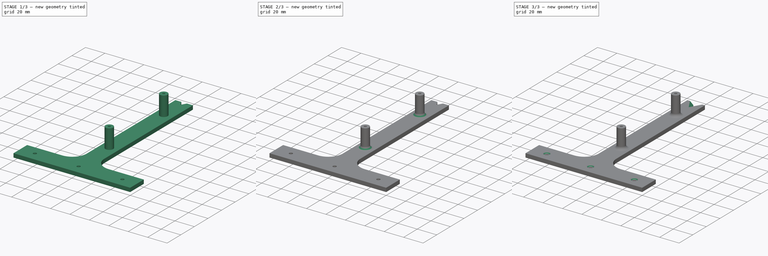
[diagram: build sequence overview — one tinted view per stage of 3, left to right]
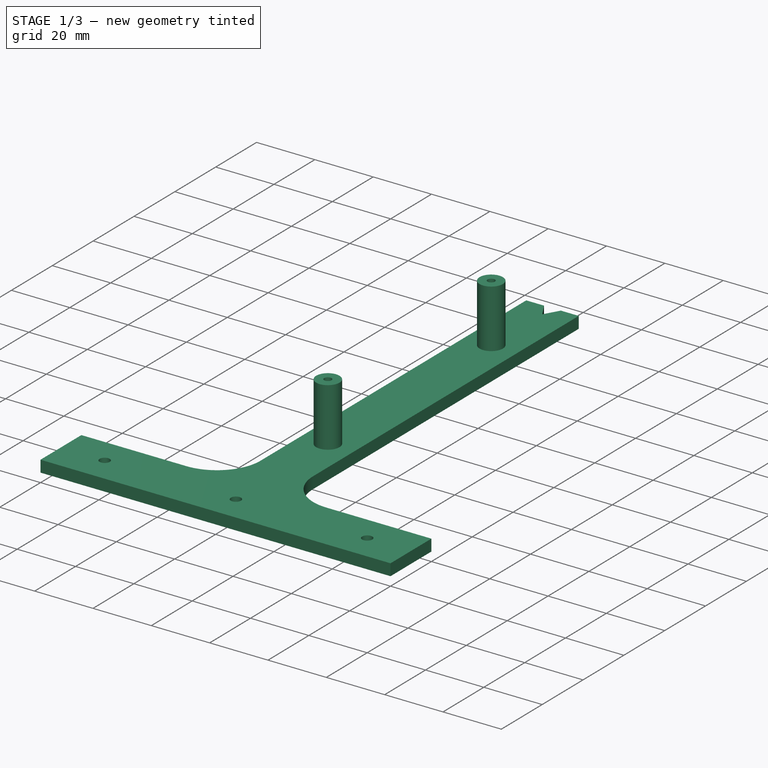
[diagram: stage 1 of 3 — iso view after this stage's code; geometry added in this stage tinted green]
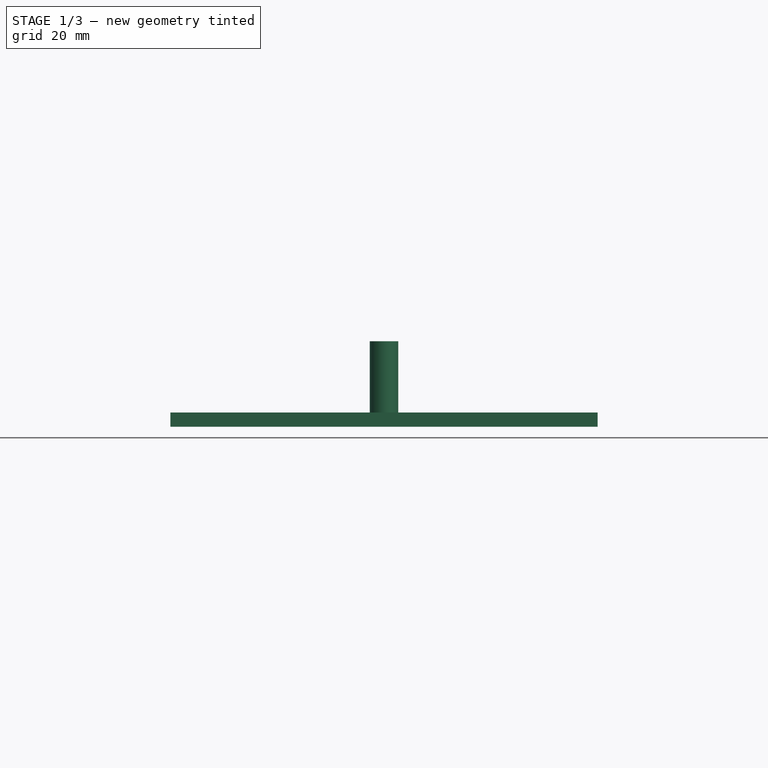
[diagram: stage 1 of 3 — front view after this stage's code; geometry added in this stage tinted green]
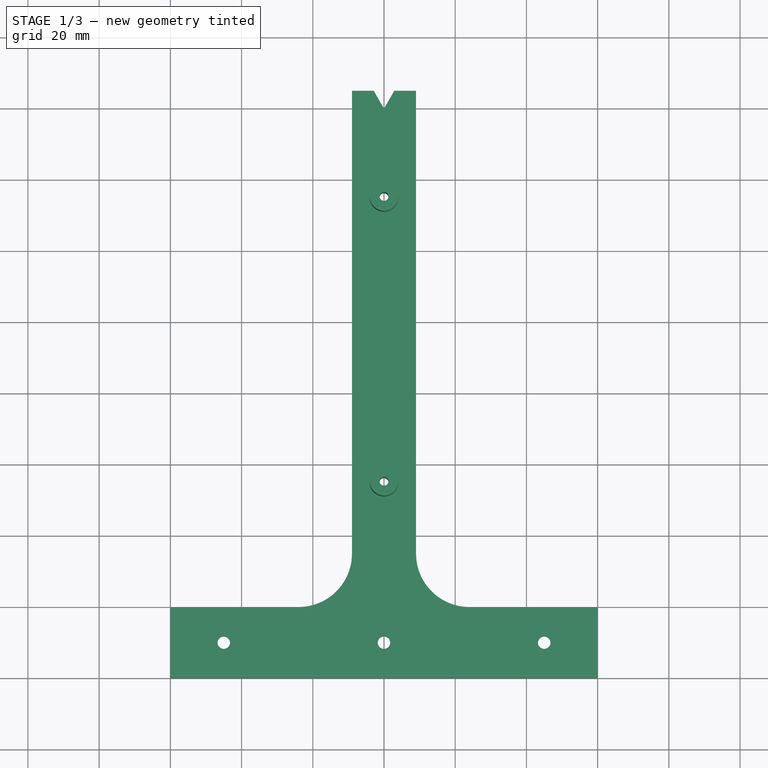
[diagram: stage 1 of 3 — top view after this stage's code; geometry added in this stage tinted green]
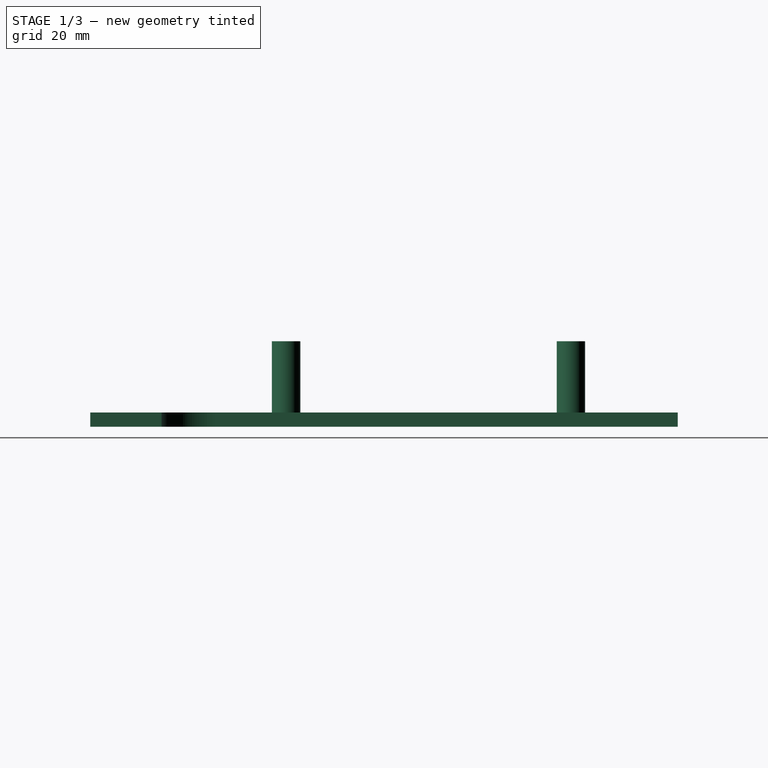
[diagram: stage 1 of 3 — right view after this stage's code; geometry added in this stage tinted green]
FCSTD DOCUMENT  (FreeCAD 0.18R16131 (Git))
Label: Bohrschablone
License: All rights reserved
LicenseURL: http://en.wikipedia.org/wiki/All_rights_reserved
objects: Sketcher::SketchObject×2, PartDesign::Pad×2, PartDesign::Fillet×2, PartDesign::Chamfer×2, PartDesign::Body×1
note: 11 computed .brp shape members not serialized (recipe doc carries the construction recipe); baked Part::Feature solids carry a one-line shape summary decoded from their .brp

FEATURE [Sketcher::SketchObject] Sketch
  MapMode = 5
  Support = -> [XY_Plane]
  sketch-geometry (18):
    g0: LineSegment StartX=-24 StartY=0 StartZ=0 EndX=-60 EndY=0 EndZ=0
    g1: LineSegment StartX=-60 StartY=0 StartZ=0 EndX=-60 EndY=-20 EndZ=0
    g2: LineSegment StartX=-60 StartY=-20 StartZ=0 EndX=60 EndY=-20 EndZ=0
    g3: LineSegment StartX=60 StartY=-20 StartZ=0 EndX=60 EndY=0 EndZ=0
    g4: LineSegment StartX=60 StartY=0 StartZ=0 EndX=24 EndY=0 EndZ=0
    g5: LineSegment StartX=-9 StartY=15 StartZ=0 EndX=-9 EndY=145 EndZ=0
    g6: LineSegment StartX=-9 StartY=145 StartZ=0 EndX=-2.88675 EndY=145 EndZ=0
    g7: LineSegment StartX=-2.88675 StartY=145 StartZ=0 EndX=0 EndY=140 EndZ=0
    g8: LineSegment StartX=0 StartY=140 StartZ=0 EndX=2.88675 EndY=145 EndZ=0
    g9: LineSegment StartX=2.88675 StartY=145 StartZ=0 EndX=9 EndY=145 EndZ=0
    g10: LineSegment StartX=9 StartY=145 StartZ=0 EndX=9 EndY=15 EndZ=0
    g11: ArcOfCircle CenterX=-24 CenterY=15 CenterZ=0 NormalX=0 NormalY=0 NormalZ=1 AngleXU=0 Radius=15 StartAngle=4.71239 EndAngle=6.28319
    g12: ArcOfCircle CenterX=24 CenterY=15 CenterZ=0 NormalX=0 NormalY=0 NormalZ=1 AngleXU=0 Radius=15 StartAngle=3.14159 EndAngle=4.71239
    g13: Circle CenterX=-45 CenterY=-10 CenterZ=0 NormalX=0 NormalY=0 NormalZ=1 AngleXU=0 Radius=1.75
    g14: Circle CenterX=45 CenterY=-10 CenterZ=0 NormalX=0 NormalY=0 NormalZ=1 AngleXU=0 Radius=1.75
    g15: Circle CenterX=0 CenterY=-10 CenterZ=0 NormalX=0 NormalY=0 NormalZ=1 AngleXU=0 Radius=1.75
    g16: Circle CenterX=0 CenterY=35 CenterZ=0 NormalX=0 NormalY=0 NormalZ=1 AngleXU=0 Radius=1.25
    g17: Circle CenterX=0 CenterY=115 CenterZ=0 NormalX=0 NormalY=0 NormalZ=1 AngleXU=0 Radius=1.25
  constraints (48):
    c: PointOnObject(g0,g-1)
    c: Horizontal(g0)
    c: Coincident(g0,g1)
    c: Vertical(g1)
    c: Coincident(g1,g2)
    c: Coincident(g2,g3)
    c: PointOnObject(g3,g-1)
    c: Vertical(g3)
    c: Coincident(g3,g4)
    c: PointOnObject(g4,g-1)
    c: Vertical(g5)
    c: Coincident(g5,g6)
    c: Horizontal(g6)
    c: Coincident(g6,g7)
    c: PointOnObject(g7,g-2)
    c: Coincident(g7,g8)
    c: Coincident(g8,g9)
    c: Coincident(g9,g10)
    c: Vertical(g10)
    c: DistanceY(g4,g9) = 145
    c: DistanceY(g7,g6) = 5
    c: Symmetric(g6,g8,g-2)
    c: Symmetric(g5,g9,g-2)
    c: DistanceX(g-1,g9) = 9
    c: Angle(g8,g7) = 1.0472
    c: DistanceY(g1,g0) = 20
    c: Tangent(g11,g0) = 1.5708
    c: Tangent(g12,g4) = 1.5708
    c: Tangent(g11,g5) = -1.5708
    c: Tangent(g10,g12) = -1.5708
    c: Radius(g11) = 15
    c: Radius(g12) = 15
    c: Symmetric(g1,g2,g-2)
    c: DistanceX(g1,g2) = 120
    c: PointOnObject(g15,g-2)
    c: Radius(g13) = 1.75
    c: Equal(g13,g15)
    c: Equal(g13,g14)
    c: Horizontal(g14,g15)
    c: Symmetric(g13,g14,g-2)
    c: DistanceY(g14,g3) = 10
    c: DistanceX(g14,g3) = 15
    c: PointOnObject(g16,g-2)
    c: PointOnObject(g17,g-2)
    c: Radius(g17) = 1.25
    c: Radius(g16) = 1.25
    c: DistanceY(g4,g16) = 35
    c: DistanceY(g17,g6) = 30
FEATURE [PartDesign::Pad] Pad
  Length = 4
  Length2 = 100
  Profile = -> Sketch
  Type = 0
FEATURE [Sketcher::SketchObject] Sketch001
  ExternalGeometry = -> [Pad]
  MapMode = 5
  Placement = pos=(0,0,4) rot=(0,0,1;0rad)
  Support = -> [Pad]
  sketch-geometry (4):
    g0: Circle CenterX=0 CenterY=115 CenterZ=0 NormalX=0 NormalY=0 NormalZ=1 AngleXU=0 Radius=4
    g1: Circle CenterX=0 CenterY=115 CenterZ=0 NormalX=0 NormalY=0 NormalZ=1 AngleXU=0 Radius=1.25
    g2: Circle CenterX=0 CenterY=35 CenterZ=0 NormalX=0 NormalY=0 NormalZ=1 AngleXU=0 Radius=4
    g3: Circle CenterX=0 CenterY=35 CenterZ=0 NormalX=0 NormalY=0 NormalZ=1 AngleXU=0 Radius=1.25
  constraints (7):
    c: Coincident(g0,g-3)
    c: Radius(g0) = 4
    c: Coincident(g1,g0)
    c: Radius(g1) = 1.25
    c: Equal(g0,g2) = 4
    c: Coincident(g3,g2)
    c: Equal(g1,g3) = 1.25
FEATURE [PartDesign::Pad] Pad001
  BaseFeature = -> Pad
  Length = 20
  Length2 = 100
  Profile = -> Sketch001
  Type = 0
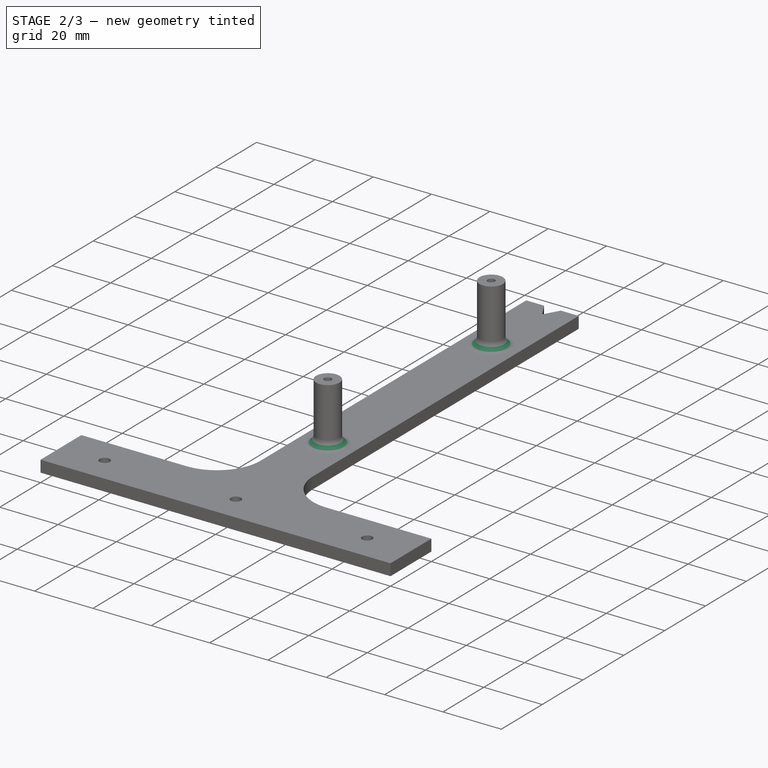
[diagram: stage 2 of 3 — iso view after this stage's code; geometry added in this stage tinted green]
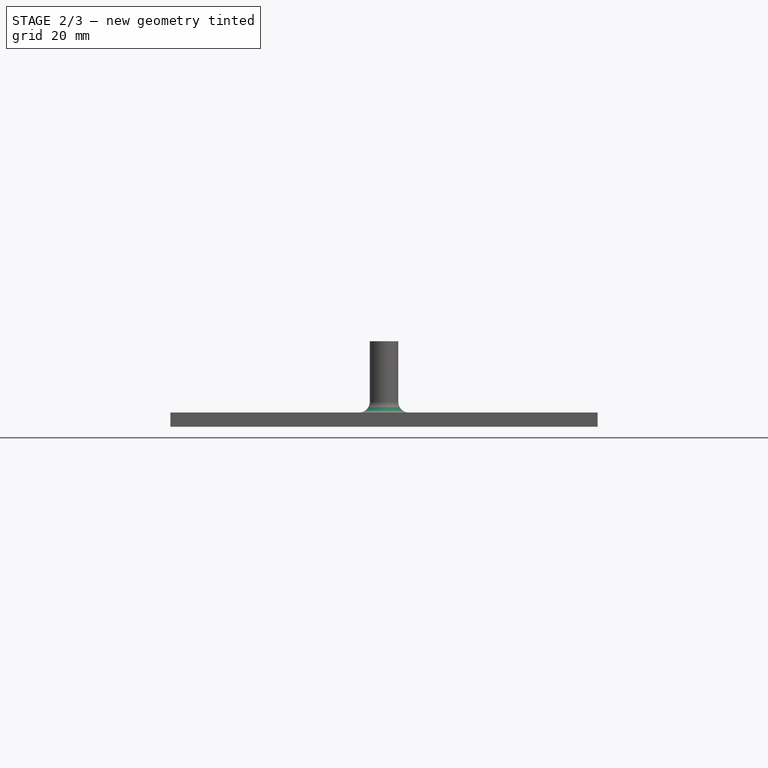
[diagram: stage 2 of 3 — front view after this stage's code; geometry added in this stage tinted green]
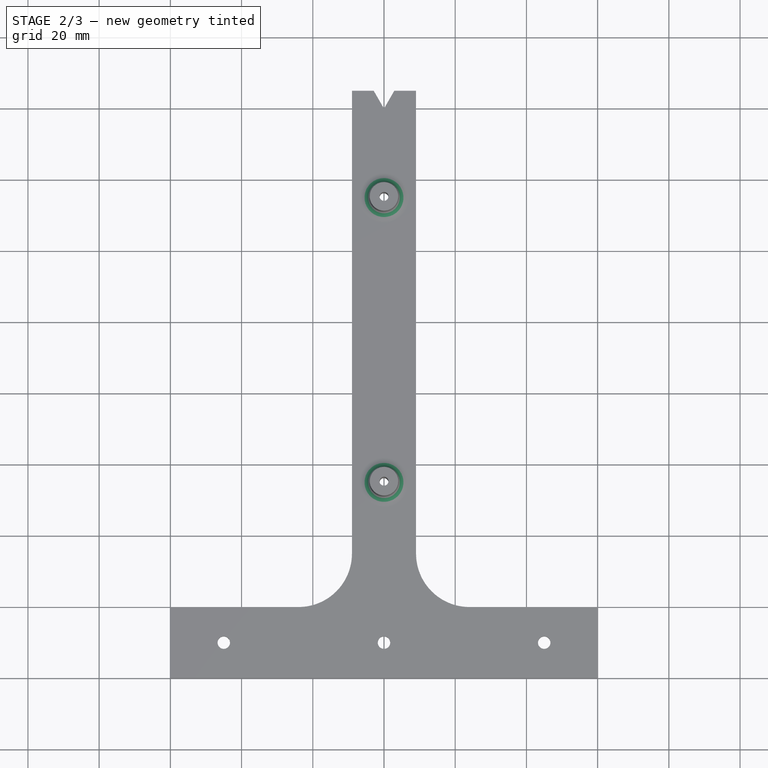
[diagram: stage 2 of 3 — top view after this stage's code; geometry added in this stage tinted green]
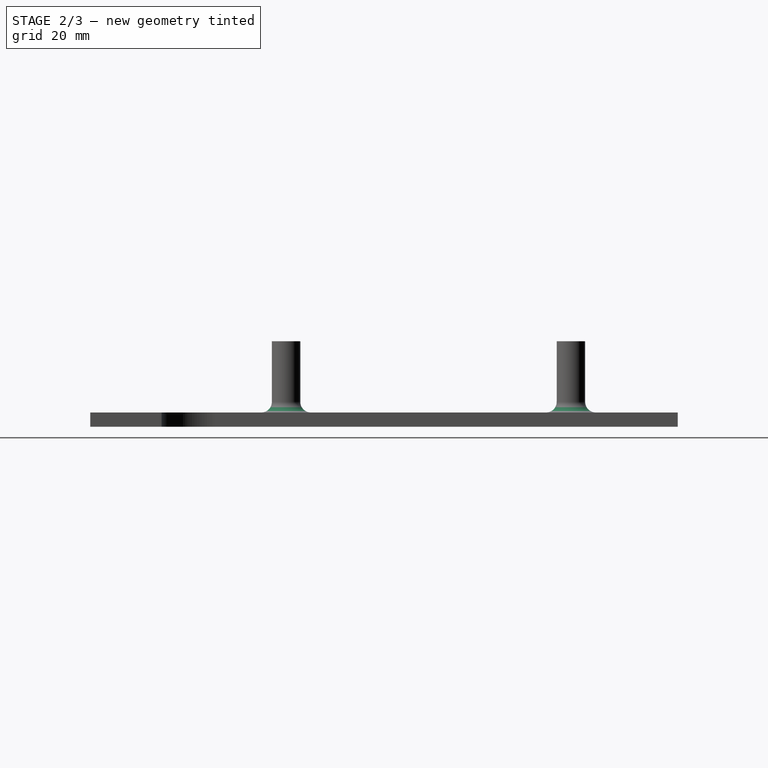
[diagram: stage 2 of 3 — right view after this stage's code; geometry added in this stage tinted green]
FEATURE [PartDesign::Fillet] Fillet
  Base = -> Pad001 [Edge39]
  BaseFeature = -> Pad001
  Radius = 3
FEATURE [PartDesign::Fillet] Fillet001
  Base = -> Fillet [Edge17]
  BaseFeature = -> Fillet
  Radius = 3
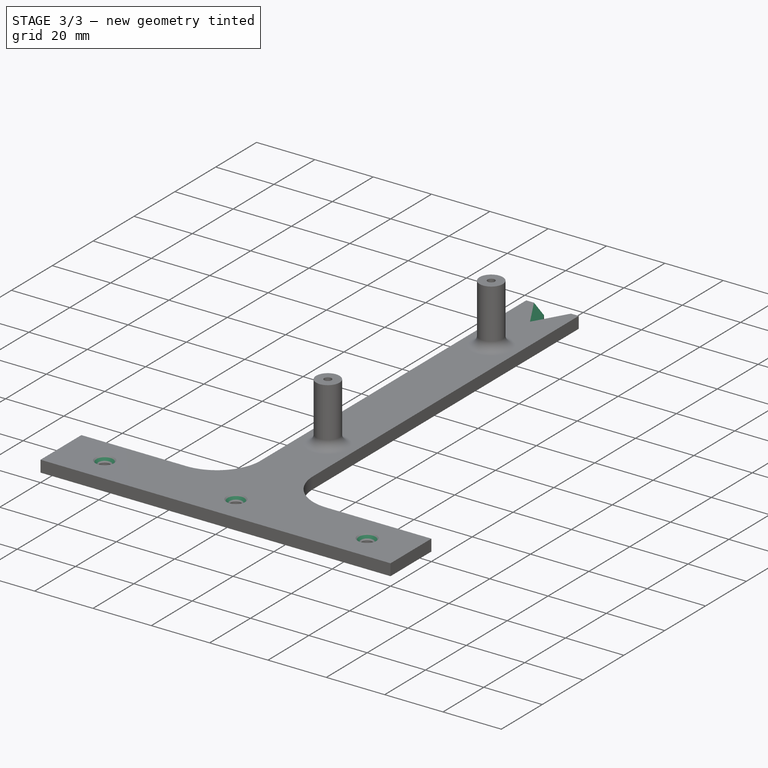
[diagram: stage 3 of 3 — iso view after this stage's code; geometry added in this stage tinted green]
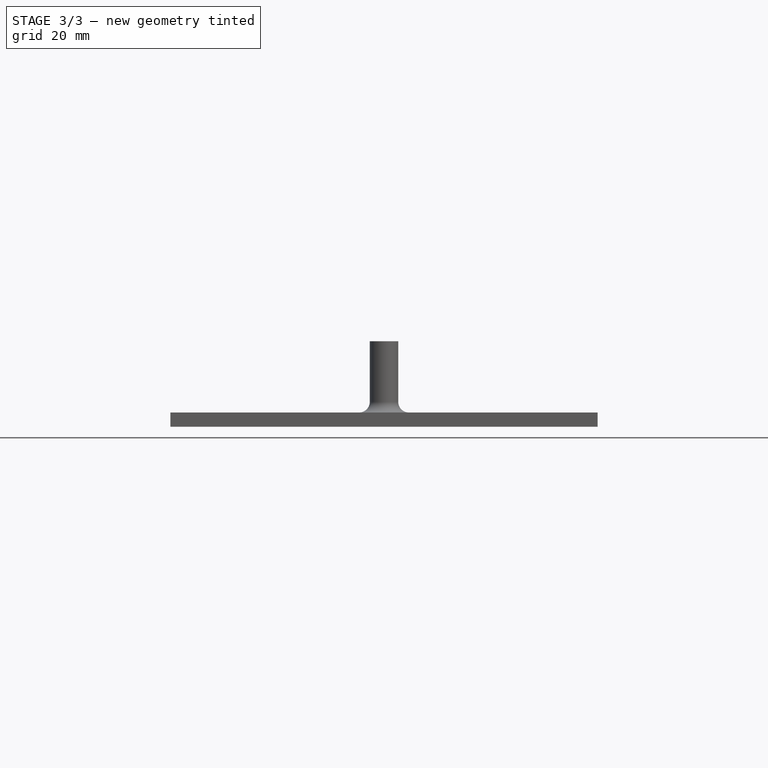
[diagram: stage 3 of 3 — front view after this stage's code; geometry added in this stage tinted green]
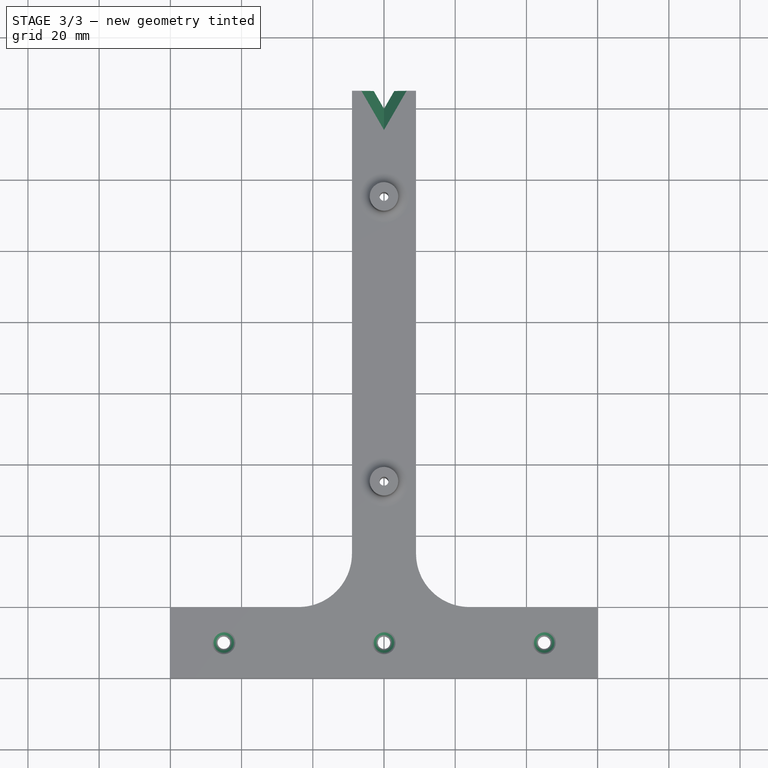
[diagram: stage 3 of 3 — top view after this stage's code; geometry added in this stage tinted green]
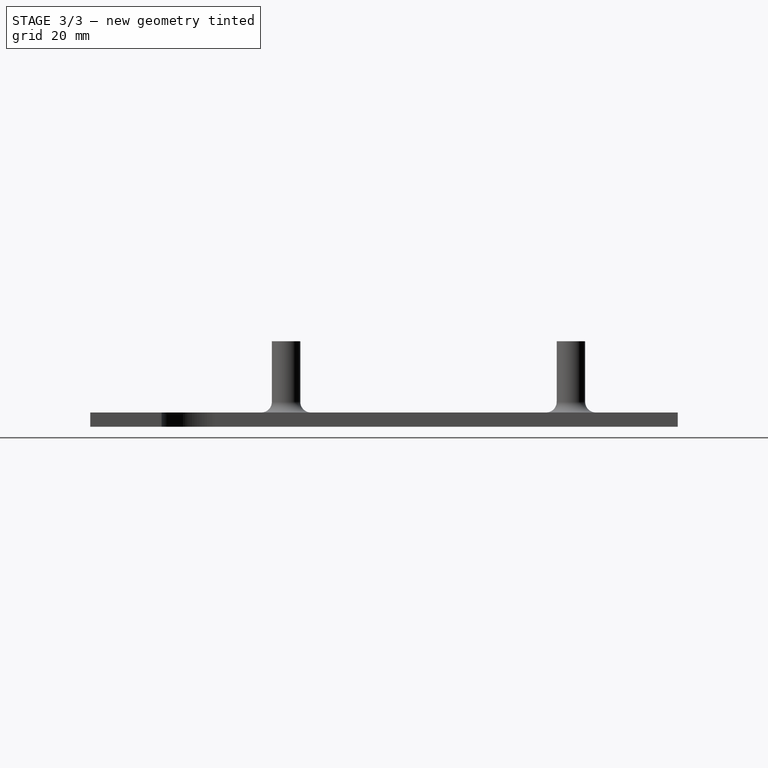
[diagram: stage 3 of 3 — right view after this stage's code; geometry added in this stage tinted green]
FEATURE [PartDesign::Chamfer] Chamfer
  Base = -> Fillet001 [Edge16,Edge17,Edge18]
  BaseFeature = -> Fillet001
  Size = 1.5
FEATURE [PartDesign::Chamfer] Chamfer001
  Base = -> Chamfer [Edge12,Edge10]
  BaseFeature = -> Chamfer
  Size = 3
FEATURE [PartDesign::Body] Body
  Group = -> [Sketch,Pad,Sketch001,Pad001,Fillet,Fillet001,Chamfer,Chamfer001]
  Origin = -> Origin
  Tip = -> Chamfer001
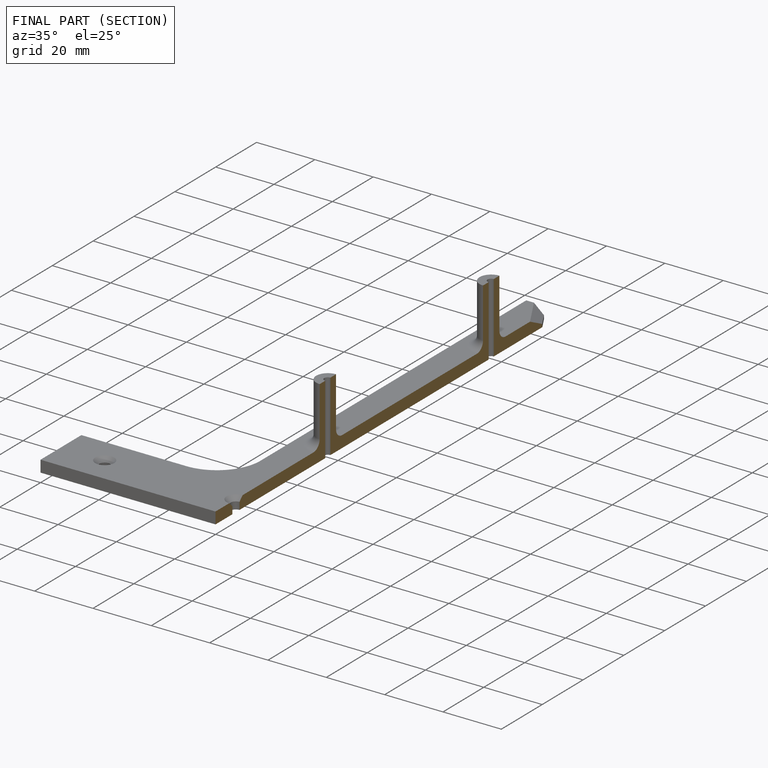
[diagram: finished part — half-section view (interior)]
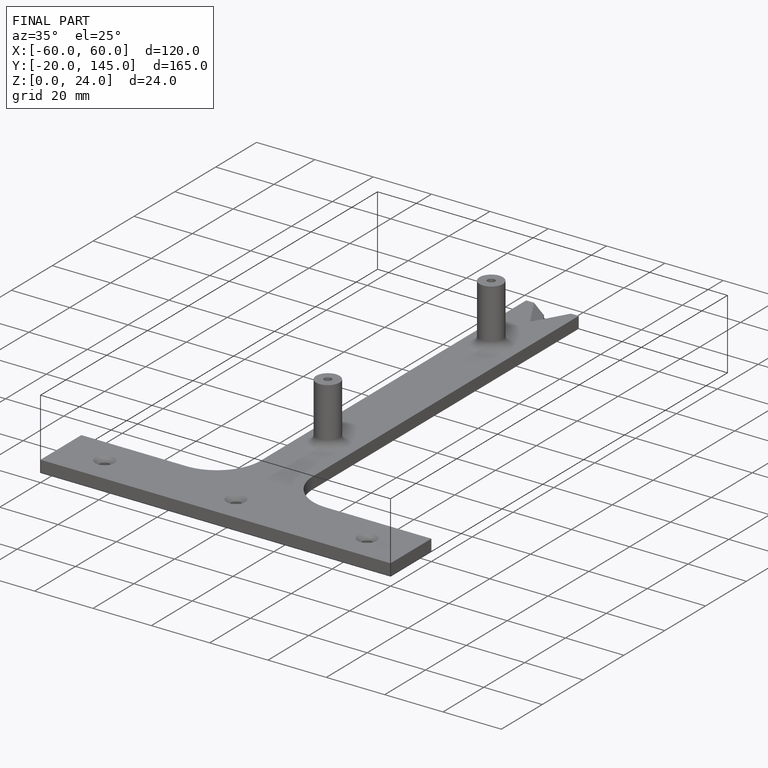
[diagram: finished part — iso view with bounding-box wireframe]
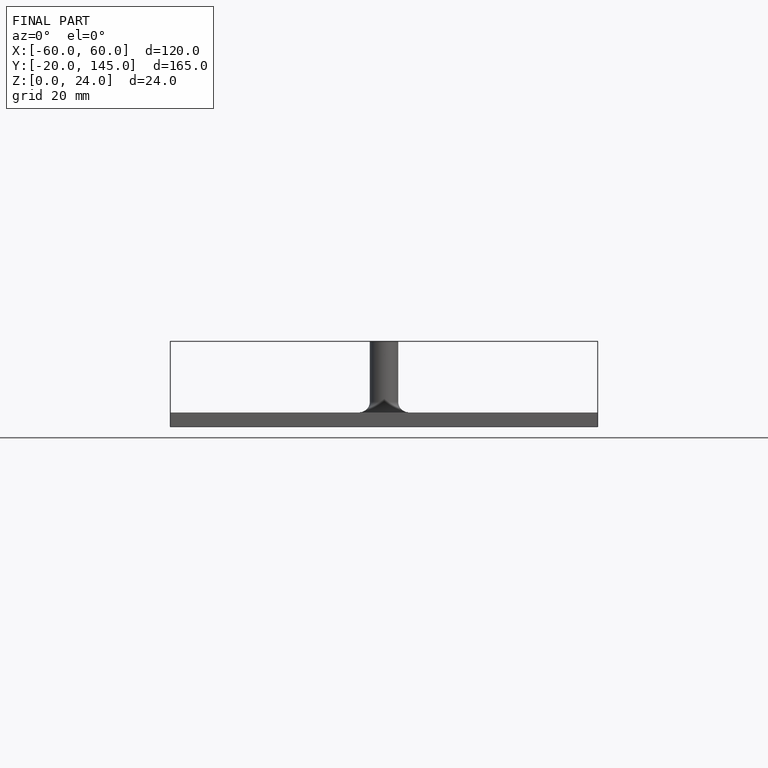
[diagram: finished part — front view with bounding-box wireframe]
